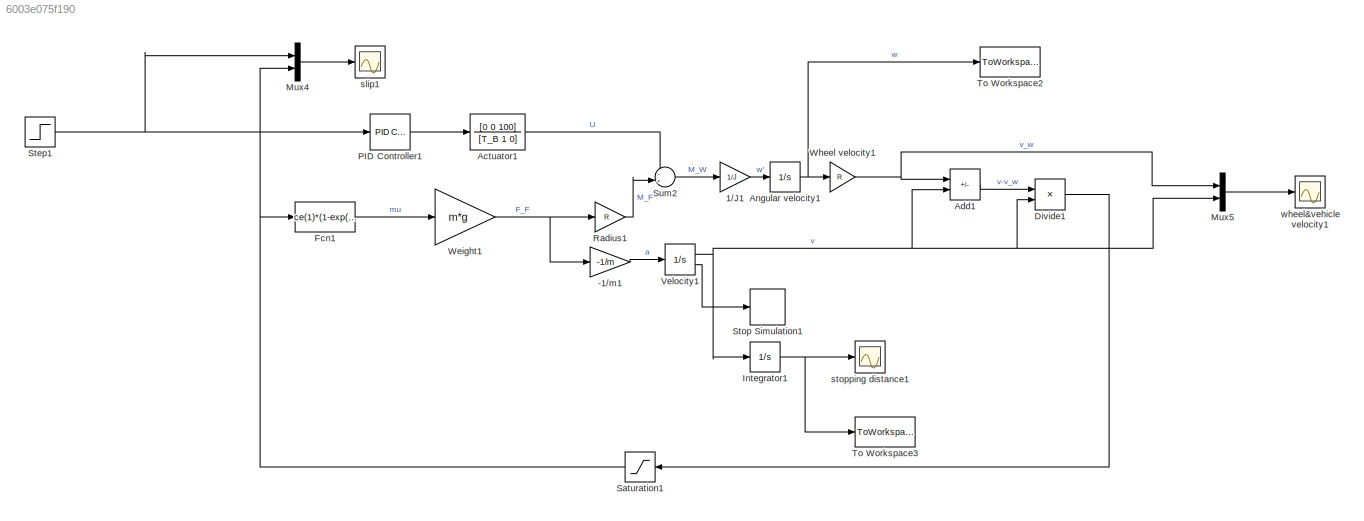
MODEL slx_6003e075f190
KIND model
CONFIG AbsTol = auto
CONFIG EnableMultiTasking = off
CONFIG FixedStep = auto
CONFIG InitFcn = lam_opt = [\n           0.17\n           0.13\n           0.16\n           0.14\n           0.06\n           0.03\n          ];
CONFIG MaxStep = auto
CONFIG MinStep = auto
CONFIG RelTol = 1e-3
CONFIG SampleTimeConstraint = Unconstrained
CONFIG SolverName = VariableStepAuto
CONFIG StartTime = 0.0
CONFIG StopTime = 60.0
BLOCK [Gain] -1//m1
  Gain = -1/m
BLOCK [Gain] 1//J1
  Gain = 1/J
BLOCK [TransferFcn] Actuator1
  Denominator = [T_B 1 0]
  Numerator = [0 0 100]
BLOCK [Sum] Add1
  IconShape = rectangular
  Inputs = -+
  Ports = [2, 1]
BLOCK [Integrator] Angular velocity1
  InitialCondition = v_x/R
  LimitOutput = on
  LowerSaturationLimit = 0
  Ports = [1, 1]
  UpperSaturationLimit = 1000
BLOCK [Product] Divide1
  Inputs = */
  Ports = [2, 1]
BLOCK [Fcn] Fcn1
  Expr = ce(1)*(1-exp(-ce(2)*u))-ce(3)*u
BLOCK [Integrator] Integrator1
  Ports = [1, 1]
BLOCK [Mux] Mux4
  DisplayOption = bar
  Inputs = 2
  Ports = [2, 1]
BLOCK [Mux] Mux5
  DisplayOption = bar
  Inputs = 2
  Ports = [2, 1]
BLOCK [Reference] PID Controller1  REF=pid_lib/PID Controller
  Ports = [1, 1]
  SourceBlock = pid_lib/PID Controller
  SourceProductBaseCode = SL
  SourceType = PID 1dof
BLOCK [Gain] Radius1
  Gain = R
BLOCK [Saturate] Saturation1
  LowerLimit = 0
  UpperLimit = 1
BLOCK [Step] Step1
  After = lam_opt(sel)
  SampleTime = 0
  Time = 5
BLOCK [Stop] Stop Simulation1
BLOCK [Sum] Sum2
  Inputs = -+|
  Ports = [2, 1]
BLOCK [ToWorkspace] To Workspace2
  FixptAsFi = on
  MaxDataPoints = inf
  Ports = [1]
  SampleTime = -1
  SaveFormat = Timeseries
  VariableName = wheel_v_off
BLOCK [ToWorkspace] To Workspace3
  FixptAsFi = on
  MaxDataPoints = inf
  Ports = [1]
  SampleTime = -1
  SaveFormat = Timeseries
  VariableName = stopping_d_off
BLOCK [Integrator] Velocity1
  InitialCondition = v_x
  LimitOutput = on
  LowerSaturationLimit = 1
  Ports = [1, 2]
  ShowSaturationPort = on
  UpperSaturationLimit = 1000
BLOCK [Gain] Weight1
  Gain = m*g
BLOCK [Gain] Wheel velocity1
  Gain = R
BLOCK [Scope] slip1
  Floating = off
  NumInputPorts = 1
  Ports = [1]
  ScopeSpecificationString = Simulink.scopes.TimeScopeBlockCfg('CurrentConfiguration', extmgr.ConfigurationSet(extmgr.Configuration('Core','General UI',true),extmgr.Configuration('Core','Source UI',true),extmgr.Configuration('Sources','WiredSimulink',true,'DataLoggingVariableName','slips1','DataLoggingSaveFormat','StructureWithTime'),extmgr.Configuration('Visuals','Time Domain',true,'SerializedDisplays',{struct('MinYLimReal',...<+1406ch>
BLOCK [Scope] stopping distance1
  Floating = off
  NumInputPorts = 1
  Ports = [1]
  ScopeSpecificationString = Simulink.scopes.TimeScopeBlockCfg('CurrentConfiguration', extmgr.ConfigurationSet(extmgr.Configuration('Core','General UI',true),extmgr.Configuration('Core','Source UI',true),extmgr.Configuration('Sources','WiredSimulink',true,'DataLoggingVariableName','stopping_dist1','DataLoggingSaveFormat','StructureWithTime'),extmgr.Configuration('Visuals','Time Domain',true,'SerializedDisplays',{struct('MinYL...<+1428ch>
BLOCK [Scope] wheel&vehicle velocity1
  Floating = off
  NumInputPorts = 1
  Ports = [1]
  ScopeSpecificationString = Simulink.scopes.TimeScopeBlockCfg('CurrentConfiguration', extmgr.ConfigurationSet(extmgr.Configuration('Core','General UI',true),extmgr.Configuration('Core','Source UI',true),extmgr.Configuration('Sources','WiredSimulink',true,'DataLoggingVariableName','velocities1','DataLoggingSaveFormat','StructureWithTime'),extmgr.Configuration('Visuals','Time Domain',true,'SerializedDisplays',{struct('MinYLimR...<+1409ch>
LINE -1//m1:1 -> Velocity1:1
LINE 1//J1:1 -> Angular velocity1:1
LINE Actuator1:1 -> Sum2:1
LINE Add1:1 -> Divide1:1
NET Angular velocity1:1 -> To Workspace2:1, Wheel velocity1:1
LINE Divide1:1 -> Saturation1:1
LINE Fcn1:1 -> Weight1:1
NET Integrator1:1 -> To Workspace3:1, stopping distance1:1
LINE Mux4:1 -> slip1:1
LINE Mux5:1 -> wheel&vehicle velocity1:1
LINE PID Controller1:1 -> Actuator1:1
LINE Radius1:1 -> Sum2:2
NET Saturation1:1 -> Fcn1:1, Mux4:2
NET Step1:1 -> Mux4:1, PID Controller1:1
LINE Sum2:1 -> 1//J1:1
NET Velocity1:1 -> Add1:2, Divide1:2, Integrator1:1, Mux5:2
LINE Velocity1:2 -> Stop Simulation1:1
NET Weight1:1 -> -1//m1:1, Radius1:1
NET Wheel velocity1:1 -> Add1:1, Mux5:1
note: NET lines group one-source signal fan-out (src -> all destinations, sorted); 1:1 wires keep LINE
